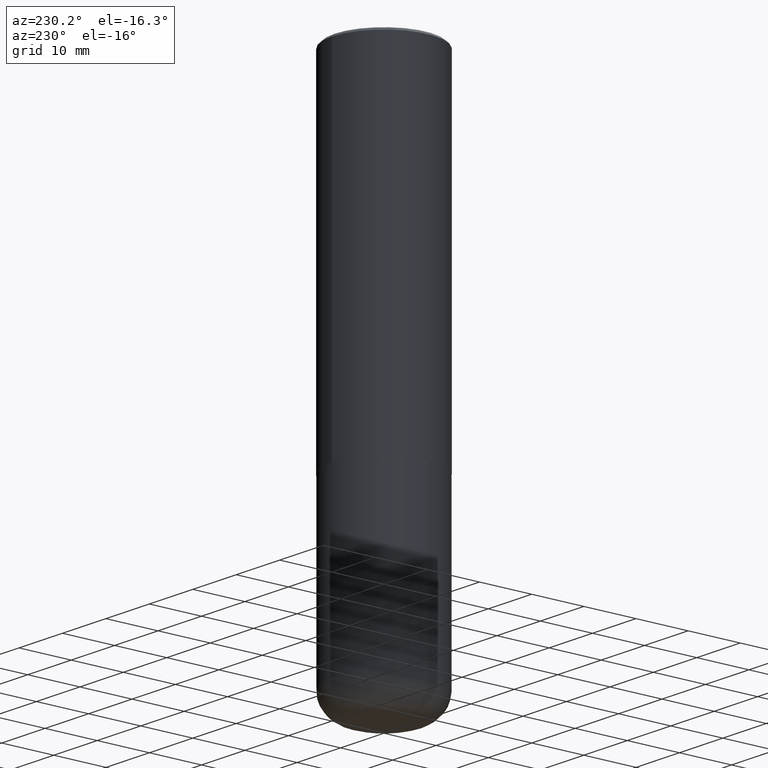
[diagram: clean part render]
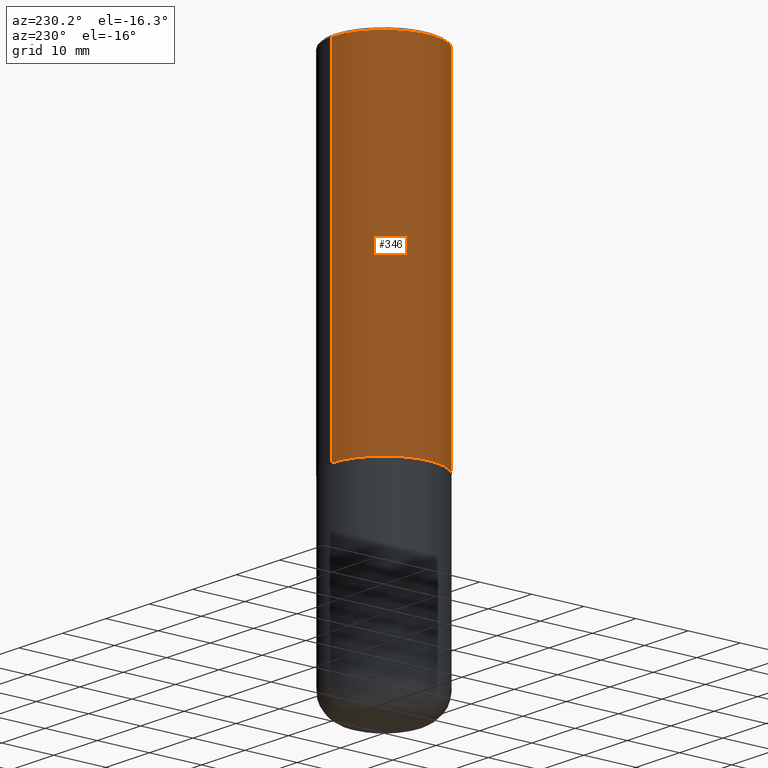
[diagram: same view with one face highlighted and labeled with its STEP entity id]
A machine part, auxiliary view. The second image highlights one B-rep face of the part: STEP entity #346.
In plain terms, the highlighted cylindrical surface (partial cylindrical patch) has radius 10 mm, axis along (-0, 0, 1).
Its self-contained STEP definition (entity closure, byte-faithful):
#18 = DIRECTION ( 'NONE',  ( -2.446421346102411128E-29, 3.490117247466403305E-15, 1.000000000000000000 ) ) ;
#20 = VERTEX_POINT ( 'NONE', #248 ) ;
#29 = EDGE_LOOP ( 'NONE', ( #265, #234, #221, #309 ) ) ;
#34 = EDGE_CURVE ( 'NONE', #20, #76, #41, .T. ) ;
#41 = CIRCLE ( 'NONE', #343, 0.3936999999999999389 ) ;
#46 = VERTEX_POINT ( 'NONE', #193 ) ;
#61 = CARTESIAN_POINT ( 'NONE',  ( -2.749192406205083217E-15, -0.3937000000000001054, 1.374059160327523452E-15 ) ) ;
#65 = EDGE_CURVE ( 'NONE', #46, #20, #299, .T. ) ;
#68 = DIRECTION ( 'NONE',  ( -2.446421346102411128E-29, 3.490117247466403305E-15, 1.000000000000000000 ) ) ;
#72 = CYLINDRICAL_SURFACE ( 'NONE', #384, 0.3937000000000001054 ) ;
#75 = CARTESIAN_POINT ( 'NONE',  ( 0.000000000000000000, 0.000000000000000000, 0.000000000000000000 ) ) ;
#76 = VERTEX_POINT ( 'NONE', #367 ) ;
#77 = AXIS2_PLACEMENT_3D ( 'NONE', #357, #152, #389 ) ;
#135 = DIRECTION ( 'NONE',  ( -2.446421346102411408E-29, 3.490117247466403305E-15, 1.000000000000000000 ) ) ;
#152 = DIRECTION ( 'NONE',  ( -2.446421346102411128E-29, 3.490117247466403305E-15, 1.000000000000000000 ) ) ;
#193 = CARTESIAN_POINT ( 'NONE',  ( 2.797406750687547919E-15, 0.3936999999999912792, -2.597400000000002152 ) ) ;
#196 = DIRECTION ( 'NONE',  ( -6.982962677686265922E-15, -1.000000000000000000, 3.491137977679280212E-15 ) ) ;
#203 = VECTOR ( 'NONE', #380, 39.37007874015748143 ) ;
#221 = ORIENTED_EDGE ( 'NONE', *, *, #263, .T. ) ;
#227 = EDGE_CURVE ( 'NONE', #46, #307, #255, .T. ) ;
#234 = ORIENTED_EDGE ( 'NONE', *, *, #227, .T. ) ;
#248 = CARTESIAN_POINT ( 'NONE',  ( 2.749192406205082822E-15, 0.3936999999999998834, -0.02000000000000146105 ) ) ;
#255 = CIRCLE ( 'NONE', #77, 0.3937000000000002720 ) ;
#257 = LINE ( 'NONE', #61, #203 ) ;
#263 = EDGE_CURVE ( 'NONE', #307, #76, #257, .T. ) ;
#265 = ORIENTED_EDGE ( 'NONE', *, *, #65, .F. ) ;
#268 = FACE_OUTER_BOUND ( 'NONE', #29, .T. ) ;
#285 = CARTESIAN_POINT ( 'NONE',  ( 4.892842692204843555E-31, -6.980234494932836242E-17, -0.02000000000000008715 ) ) ;
#296 = CARTESIAN_POINT ( 'NONE',  ( 2.797406750687514786E-15, 0.3937000000000001054, -1.374059160327523452E-15 ) ) ;
#299 = LINE ( 'NONE', #296, #406 ) ;
#307 = VERTEX_POINT ( 'NONE', #381 ) ;
#309 = ORIENTED_EDGE ( 'NONE', *, *, #34, .F. ) ;
#338 = DIRECTION ( 'NONE',  ( -6.982962677686265133E-15, -1.000000000000000000, 3.490117247466403699E-15 ) ) ;
#343 = AXIS2_PLACEMENT_3D ( 'NONE', #285, #68, #196 ) ;
#346 = ADVANCED_FACE ( 'NONE', ( #268 ), #72, .T. ) ;
#357 = CARTESIAN_POINT ( 'NONE',  ( 6.354334804366404649E-29, -9.065230538569238132E-15, -2.597400000000000375 ) ) ;
#367 = CARTESIAN_POINT ( 'NONE',  ( -2.700978061722650858E-15, -0.3937000000000000499, -0.01999999999999870978 ) ) ;
#380 = DIRECTION ( 'NONE',  ( -2.446421346102411408E-29, 3.490117247466403305E-15, 1.000000000000000000 ) ) ;
#381 = CARTESIAN_POINT ( 'NONE',  ( -2.749192406205021291E-15, -0.3937000000000093758, -2.597399999999999043 ) ) ;
#384 = AXIS2_PLACEMENT_3D ( 'NONE', #75, #18, #338 ) ;
#389 = DIRECTION ( 'NONE',  ( -6.982962677686265922E-15, -1.000000000000000000, 4.163344669033672479E-15 ) ) ;
#406 = VECTOR ( 'NONE', #135, 39.37007874015748143 ) ;